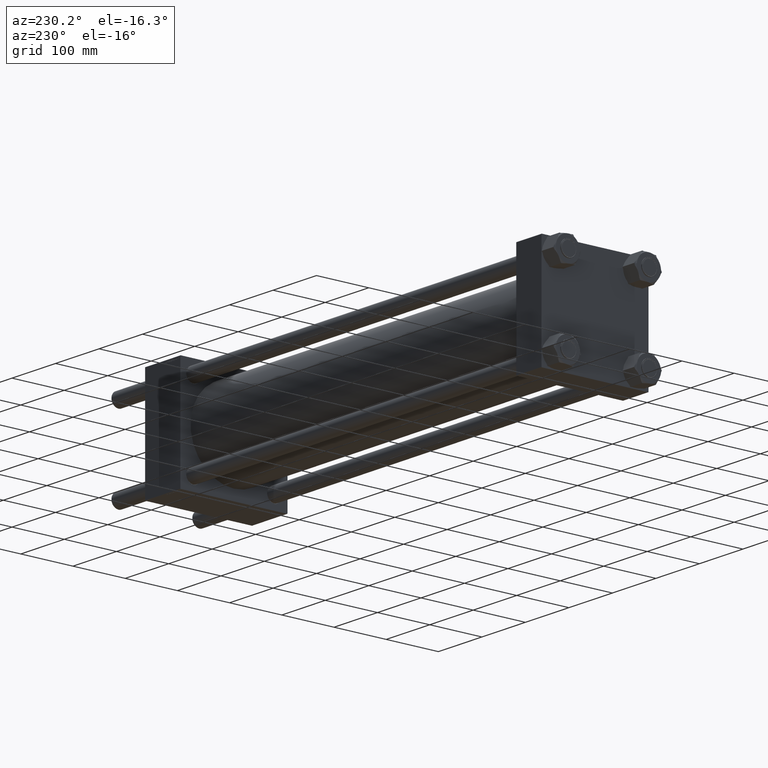
[diagram: clean part render]
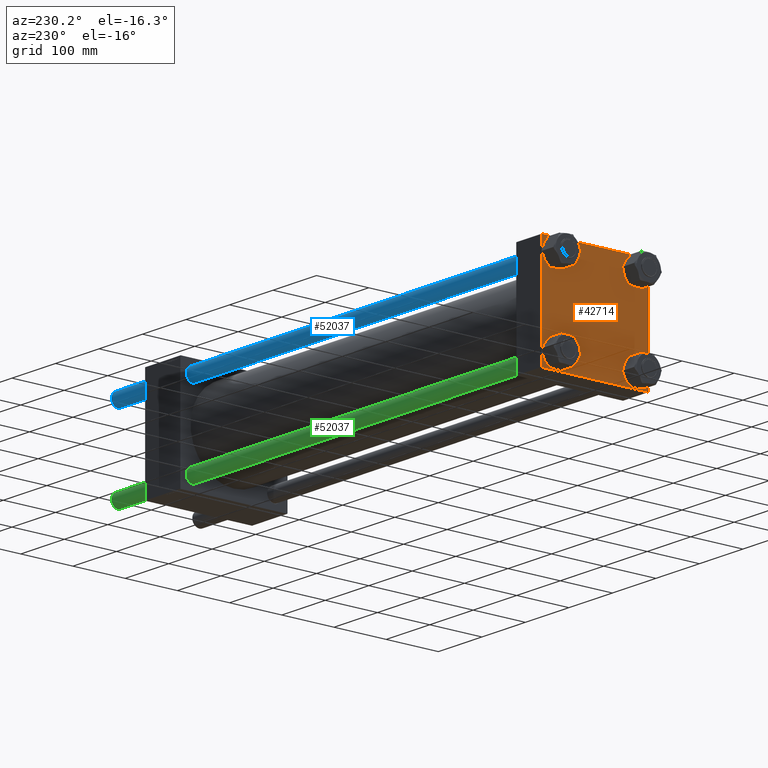
[diagram: same view with three faces highlighted in distinct colors, each labeled with its STEP entity id]
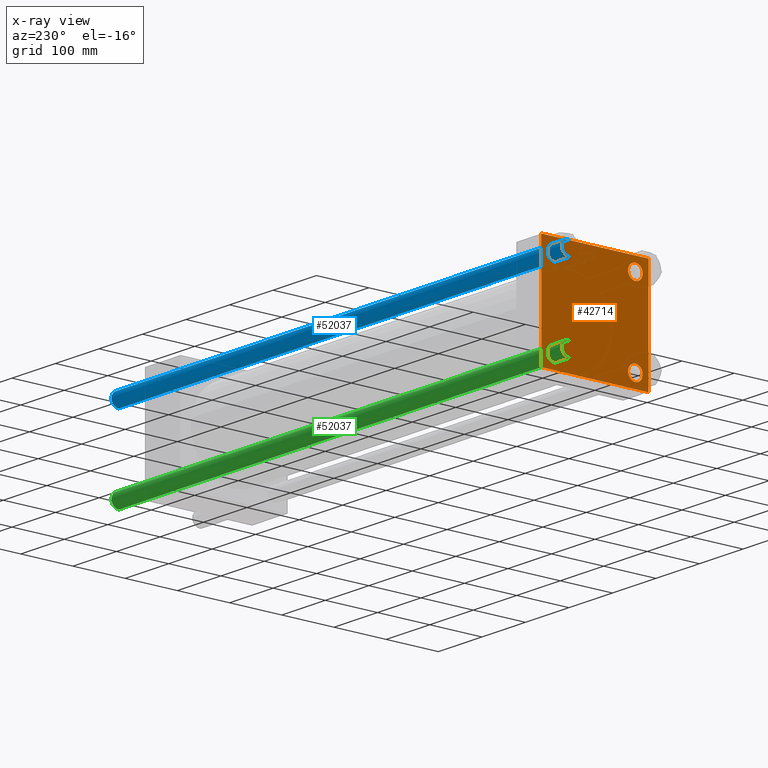
[diagram: x-ray of the same camera — body ghosted, the three highlighted faces saturated]
A machine part, auxiliary view with three faces highlighted in distinct colors.
The next image is the same camera in x-ray (body ghosted, the three faces saturated) — at least one of them is partly hidden behind the body in this view.
Their STEP definitions:

[orange] entity #42714 — the highlighted planar face has unit normal (-1, 0, 0).
#962 = LINE ( 'NONE', #22947, #21570 ) ;
#1327 = CARTESIAN_POINT ( 'NONE',  ( 0.000000000000000000, -102.2499999999999716, -102.2499999999999716 ) ) ;
#1671 = CARTESIAN_POINT ( 'NONE',  ( 0.000000000000000000, 77.44999999999998863, -63.44999999999989626 ) ) ;
#2282 = VERTEX_POINT ( 'NONE', #13772 ) ;
#2371 = CIRCLE ( 'NONE', #20866, 14.00000000000012434 ) ;
#2574 = DIRECTION ( 'NONE',  ( 1.000000000000000000, -0.000000000000000000, -0.000000000000000000 ) ) ;
#3871 = DIRECTION ( 'NONE',  ( 1.000000000000000000, -0.000000000000000000, -0.000000000000000000 ) ) ;
#4289 = PLANE ( 'NONE',  #53855 ) ;
#4861 = CARTESIAN_POINT ( 'NONE',  ( 0.000000000000000000, -77.44999999999996021, -63.44999999999991047 ) ) ;
#5528 = DIRECTION ( 'NONE',  ( 1.000000000000000000, -0.000000000000000000, -0.000000000000000000 ) ) ;
#5550 = DIRECTION ( 'NONE',  ( 0.000000000000000000, 0.000000000000000000, 1.000000000000000000 ) ) ;
#5654 = DIRECTION ( 'NONE',  ( 0.000000000000000000, 0.000000000000000000, 1.000000000000000000 ) ) ;
#5940 = CARTESIAN_POINT ( 'NONE',  ( 0.000000000000000000, -77.44999999999996021, 77.45000000000003126 ) ) ;
#6613 = CIRCLE ( 'NONE', #41757, 14.00000000000012434 ) ;
#6953 = ORIENTED_EDGE ( 'NONE', *, *, #9409, .T. ) ;
#7185 = AXIS2_PLACEMENT_3D ( 'NONE', #38624, #43532, #56568 ) ;
#7325 = CARTESIAN_POINT ( 'NONE',  ( 0.000000000000000000, -77.44999999999996021, -91.45000000000015916 ) ) ;
#7538 = CIRCLE ( 'NONE', #39930, 14.00000000000012434 ) ;
#9409 = EDGE_CURVE ( 'NONE', #57091, #15075, #6613, .T. ) ;
#10586 = DIRECTION ( 'NONE',  ( 0.000000000000000000, 0.7071067811865474617, -0.7071067811865474617 ) ) ;
#10703 = DIRECTION ( 'NONE',  ( 1.000000000000000000, -0.000000000000000000, -0.000000000000000000 ) ) ;
#11068 = ORIENTED_EDGE ( 'NONE', *, *, #21853, .T. ) ;
#11828 = EDGE_CURVE ( 'NONE', #15075, #57091, #40883, .T. ) ;
#12135 = VERTEX_POINT ( 'NONE', #38922 ) ;
#12241 = DIRECTION ( 'NONE',  ( 0.000000000000000000, 0.000000000000000000, 1.000000000000000000 ) ) ;
#12375 = DIRECTION ( 'NONE',  ( 0.000000000000000000, 0.000000000000000000, 1.000000000000000000 ) ) ;
#12846 = EDGE_LOOP ( 'NONE', ( #44257, #39373 ) ) ;
#13221 = VERTEX_POINT ( 'NONE', #53761 ) ;
#13230 = LINE ( 'NONE', #48839, #27051 ) ;
#13523 = ORIENTED_EDGE ( 'NONE', *, *, #57269, .T. ) ;
#13772 = CARTESIAN_POINT ( 'NONE',  ( 0.000000000000000000, 102.5000000000000284, -101.9999999999999147 ) ) ;
#14075 = CARTESIAN_POINT ( 'NONE',  ( 0.000000000000000000, 102.2500000000000142, 102.2500000000000142 ) ) ;
#14211 = DIRECTION ( 'NONE',  ( 0.000000000000000000, 0.000000000000000000, 1.000000000000000000 ) ) ;
#14477 = DIRECTION ( 'NONE',  ( 0.000000000000000000, 0.000000000000000000, 1.000000000000000000 ) ) ;
#15075 = VERTEX_POINT ( 'NONE', #47080 ) ;
#15429 = EDGE_CURVE ( 'NONE', #12135, #13221, #962, .T. ) ;
#16279 = EDGE_LOOP ( 'NONE', ( #16404, #33040, #28619, #21400, #51995, #17416, #43412, #13523 ) ) ;
#16404 = ORIENTED_EDGE ( 'NONE', *, *, #55862, .T. ) ;
#17002 = CARTESIAN_POINT ( 'NONE',  ( 0.000000000000000000, -101.9999999999999147, 102.5000000000000000 ) ) ;
#17416 = ORIENTED_EDGE ( 'NONE', *, *, #47069, .T. ) ;
#17829 = ORIENTED_EDGE ( 'NONE', *, *, #50490, .T. ) ;
#19379 = EDGE_LOOP ( 'NONE', ( #6953, #47185 ) ) ;
#20074 = LINE ( 'NONE', #46979, #21438 ) ;
#20494 = VECTOR ( 'NONE', #24979, 1000.000000000000114 ) ;
#20866 = AXIS2_PLACEMENT_3D ( 'NONE', #48672, #5528, #14211 ) ;
#21063 = CARTESIAN_POINT ( 'NONE',  ( 0.000000000000000000, 77.44999999999998863, 63.44999999999989626 ) ) ;
#21112 = EDGE_CURVE ( 'NONE', #44792, #54692, #30734, .T. ) ;
#21230 = CARTESIAN_POINT ( 'NONE',  ( 0.000000000000000000, -77.44999999999996021, -77.45000000000003126 ) ) ;
#21400 = ORIENTED_EDGE ( 'NONE', *, *, #28367, .T. ) ;
#21438 = VECTOR ( 'NONE', #33963, 1000.000000000000000 ) ;
#21570 = VECTOR ( 'NONE', #41188, 1000.000000000000000 ) ;
#21648 = CARTESIAN_POINT ( 'NONE',  ( 0.000000000000000000, 0.000000000000000000, 0.000000000000000000 ) ) ;
#21777 = VERTEX_POINT ( 'NONE', #37790 ) ;
#21853 = EDGE_CURVE ( 'NONE', #33631, #23540, #2371, .T. ) ;
#22193 = CARTESIAN_POINT ( 'NONE',  ( 0.000000000000000000, -102.5000000000000000, -101.9999999999998863 ) ) ;
#22947 = CARTESIAN_POINT ( 'NONE',  ( 0.000000000000000000, 102.5000000000000284, -102.4999999999999716 ) ) ;
#23174 = ORIENTED_EDGE ( 'NONE', *, *, #53692, .T. ) ;
#23470 = CIRCLE ( 'NONE', #33660, 14.00000000000012434 ) ;
#23540 = VERTEX_POINT ( 'NONE', #47126 ) ;
#24185 = VERTEX_POINT ( 'NONE', #7325 ) ;
#24395 = CARTESIAN_POINT ( 'NONE',  ( 0.000000000000000000, 77.44999999999998863, 91.45000000000014495 ) ) ;
#24979 = DIRECTION ( 'NONE',  ( -0.000000000000000000, -0.7071067811865474617, -0.7071067811865474617 ) ) ;
#25251 = CIRCLE ( 'NONE', #30835, 14.00000000000012434 ) ;
#25999 = FACE_BOUND ( 'NONE', #43546, .T. ) ;
#27051 = VECTOR ( 'NONE', #34958, 1000.000000000000114 ) ;
#27211 = AXIS2_PLACEMENT_3D ( 'NONE', #21230, #3871, #12241 ) ;
#27928 = CARTESIAN_POINT ( 'NONE',  ( 0.000000000000000000, 102.5000000000000284, 102.5000000000000284 ) ) ;
#28367 = EDGE_CURVE ( 'NONE', #13221, #54692, #41263, .T. ) ;
#28540 = EDGE_CURVE ( 'NONE', #36273, #54029, #32178, .T. ) ;
#28619 = ORIENTED_EDGE ( 'NONE', *, *, #15429, .T. ) ;
#29471 = CARTESIAN_POINT ( 'NONE',  ( 0.000000000000000000, -77.44999999999996021, 91.45000000000015916 ) ) ;
#30068 = FACE_BOUND ( 'NONE', #19379, .T. ) ;
#30340 = FACE_BOUND ( 'NONE', #55679, .T. ) ;
#30734 = LINE ( 'NONE', #33936, #31012 ) ;
#30835 = AXIS2_PLACEMENT_3D ( 'NONE', #50378, #10703, #14477 ) ;
#31012 = VECTOR ( 'NONE', #47237, 1000.000000000000000 ) ;
#32178 = CIRCLE ( 'NONE', #7185, 14.00000000000012434 ) ;
#33040 = ORIENTED_EDGE ( 'NONE', *, *, #46642, .T. ) ;
#33116 = CARTESIAN_POINT ( 'NONE',  ( 0.000000000000000000, 102.2500000000000000, -102.2500000000000000 ) ) ;
#33631 = VERTEX_POINT ( 'NONE', #1671 ) ;
#33660 = AXIS2_PLACEMENT_3D ( 'NONE', #48061, #57040, #35322 ) ;
#33936 = CARTESIAN_POINT ( 'NONE',  ( 0.000000000000000000, -102.4999999999999716, 102.5000000000000000 ) ) ;
#33963 = DIRECTION ( 'NONE',  ( 0.000000000000000000, -1.000000000000000000, -1.353930517835556973E-16 ) ) ;
#34341 = VERTEX_POINT ( 'NONE', #53573 ) ;
#34649 = DIRECTION ( 'NONE',  ( 1.000000000000000000, -0.000000000000000000, -0.000000000000000000 ) ) ;
#34689 = FACE_BOUND ( 'NONE', #12846, .T. ) ;
#34958 = DIRECTION ( 'NONE',  ( -0.000000000000000000, 0.7071067811865474617, 0.7071067811865474617 ) ) ;
#35322 = DIRECTION ( 'NONE',  ( 0.000000000000000000, 0.000000000000000000, 1.000000000000000000 ) ) ;
#36273 = VERTEX_POINT ( 'NONE', #21063 ) ;
#37467 = LINE ( 'NONE', #33116, #20494 ) ;
#37790 = CARTESIAN_POINT ( 'NONE',  ( 0.000000000000000000, 102.5000000000000284, 102.0000000000000142 ) ) ;
#38074 = AXIS2_PLACEMENT_3D ( 'NONE', #46818, #34649, #38142 ) ;
#38142 = DIRECTION ( 'NONE',  ( 0.000000000000000000, 0.000000000000000000, 1.000000000000000000 ) ) ;
#38624 = CARTESIAN_POINT ( 'NONE',  ( 0.000000000000000000, 77.44999999999998863, 77.45000000000001705 ) ) ;
#38922 = CARTESIAN_POINT ( 'NONE',  ( 0.000000000000000000, 102.0000000000000142, -102.4999999999999716 ) ) ;
#39223 = CIRCLE ( 'NONE', #27211, 14.00000000000012434 ) ;
#39349 = VECTOR ( 'NONE', #10586, 1000.000000000000114 ) ;
#39373 = ORIENTED_EDGE ( 'NONE', *, *, #28540, .T. ) ;
#39930 = AXIS2_PLACEMENT_3D ( 'NONE', #42229, #2574, #5550 ) ;
#40512 = VECTOR ( 'NONE', #50521, 1000.000000000000114 ) ;
#40883 = CIRCLE ( 'NONE', #38074, 14.00000000000012434 ) ;
#40945 = DIRECTION ( 'NONE',  ( 0.000000000000000000, 0.000000000000000000, -1.000000000000000000 ) ) ;
#41188 = DIRECTION ( 'NONE',  ( 0.000000000000000000, -1.000000000000000000, -1.353930517835556727E-16 ) ) ;
#41263 = LINE ( 'NONE', #1327, #40512 ) ;
#41500 = CARTESIAN_POINT ( 'NONE',  ( 0.000000000000000000, -102.4999999999999716, 102.0000000000000000 ) ) ;
#41757 = AXIS2_PLACEMENT_3D ( 'NONE', #5940, #44750, #5654 ) ;
#42229 = CARTESIAN_POINT ( 'NONE',  ( 0.000000000000000000, -77.44999999999996021, -77.45000000000003126 ) ) ;
#42714 = ADVANCED_FACE ( 'NONE', ( #30068, #25999, #30340, #34689, #47423 ), #4289, .T. ) ;
#43412 = ORIENTED_EDGE ( 'NONE', *, *, #46651, .F. ) ;
#43532 = DIRECTION ( 'NONE',  ( 1.000000000000000000, -0.000000000000000000, -0.000000000000000000 ) ) ;
#43546 = EDGE_LOOP ( 'NONE', ( #51423, #23174 ) ) ;
#44218 = VERTEX_POINT ( 'NONE', #17002 ) ;
#44257 = ORIENTED_EDGE ( 'NONE', *, *, #51384, .T. ) ;
#44750 = DIRECTION ( 'NONE',  ( 1.000000000000000000, -0.000000000000000000, -0.000000000000000000 ) ) ;
#44792 = VERTEX_POINT ( 'NONE', #41500 ) ;
#45853 = LINE ( 'NONE', #27928, #50382 ) ;
#46642 = EDGE_CURVE ( 'NONE', #2282, #12135, #37467, .T. ) ;
#46651 = EDGE_CURVE ( 'NONE', #34341, #44218, #20074, .T. ) ;
#46818 = CARTESIAN_POINT ( 'NONE',  ( 0.000000000000000000, -77.44999999999996021, 77.45000000000003126 ) ) ;
#46885 = EDGE_CURVE ( 'NONE', #52454, #24185, #7538, .T. ) ;
#46979 = CARTESIAN_POINT ( 'NONE',  ( 0.000000000000000000, 102.5000000000000284, 102.5000000000000284 ) ) ;
#47069 = EDGE_CURVE ( 'NONE', #44792, #44218, #13230, .T. ) ;
#47080 = CARTESIAN_POINT ( 'NONE',  ( 0.000000000000000000, -77.44999999999996021, 63.44999999999991047 ) ) ;
#47126 = CARTESIAN_POINT ( 'NONE',  ( 0.000000000000000000, 77.44999999999998863, -91.45000000000014495 ) ) ;
#47185 = ORIENTED_EDGE ( 'NONE', *, *, #11828, .T. ) ;
#47237 = DIRECTION ( 'NONE',  ( 0.000000000000000000, -1.353930517835556973E-16, -1.000000000000000000 ) ) ;
#47423 = FACE_OUTER_BOUND ( 'NONE', #16279, .T. ) ;
#48061 = CARTESIAN_POINT ( 'NONE',  ( 0.000000000000000000, 77.44999999999998863, 77.45000000000001705 ) ) ;
#48562 = DIRECTION ( 'NONE',  ( -1.000000000000000000, 0.000000000000000000, 0.000000000000000000 ) ) ;
#48672 = CARTESIAN_POINT ( 'NONE',  ( 0.000000000000000000, 77.44999999999998863, -77.45000000000001705 ) ) ;
#48839 = CARTESIAN_POINT ( 'NONE',  ( 0.000000000000000000, -102.2499999999999716, 102.2499999999999716 ) ) ;
#49964 = LINE ( 'NONE', #14075, #39349 ) ;
#50378 = CARTESIAN_POINT ( 'NONE',  ( 0.000000000000000000, 77.44999999999998863, -77.45000000000001705 ) ) ;
#50382 = VECTOR ( 'NONE', #40945, 1000.000000000000000 ) ;
#50490 = EDGE_CURVE ( 'NONE', #23540, #33631, #25251, .T. ) ;
#50521 = DIRECTION ( 'NONE',  ( 0.000000000000000000, -0.7071067811865474617, 0.7071067811865474617 ) ) ;
#51384 = EDGE_CURVE ( 'NONE', #54029, #36273, #23470, .T. ) ;
#51423 = ORIENTED_EDGE ( 'NONE', *, *, #46885, .T. ) ;
#51995 = ORIENTED_EDGE ( 'NONE', *, *, #21112, .F. ) ;
#52454 = VERTEX_POINT ( 'NONE', #4861 ) ;
#53573 = CARTESIAN_POINT ( 'NONE',  ( 0.000000000000000000, 102.0000000000000142, 102.5000000000000284 ) ) ;
#53692 = EDGE_CURVE ( 'NONE', #24185, #52454, #39223, .T. ) ;
#53761 = CARTESIAN_POINT ( 'NONE',  ( 0.000000000000000000, -101.9999999999999432, -102.5000000000000000 ) ) ;
#53855 = AXIS2_PLACEMENT_3D ( 'NONE', #21648, #48562, #12375 ) ;
#54029 = VERTEX_POINT ( 'NONE', #24395 ) ;
#54692 = VERTEX_POINT ( 'NONE', #22193 ) ;
#55679 = EDGE_LOOP ( 'NONE', ( #11068, #17829 ) ) ;
#55862 = EDGE_CURVE ( 'NONE', #21777, #2282, #45853, .T. ) ;
#56568 = DIRECTION ( 'NONE',  ( 0.000000000000000000, 0.000000000000000000, 1.000000000000000000 ) ) ;
#57040 = DIRECTION ( 'NONE',  ( 1.000000000000000000, -0.000000000000000000, -0.000000000000000000 ) ) ;
#57091 = VERTEX_POINT ( 'NONE', #29471 ) ;
#57269 = EDGE_CURVE ( 'NONE', #34341, #21777, #49964, .T. ) ;

[blue] entity #52037 — the highlighted cylindrical surface (edge-blend (fillet) strip) has radius 13.5 mm, axis along (1, -0, -0).
#156 = EDGE_CURVE ( 'NONE', #10868, #55394, #33296, .T. ) ;
#2156 = CARTESIAN_POINT ( 'NONE',  ( 0.000000000000000000, 0.000000000000000000, 0.4999999999999449329 ) ) ;
#2216 = AXIS2_PLACEMENT_3D ( 'NONE', #2156, #37181, #37746 ) ;
#2420 = DIRECTION ( 'NONE',  ( 0.000000000000000000, 0.000000000000000000, -1.000000000000000000 ) ) ;
#5145 = DIRECTION ( 'NONE',  ( -0.000000000000000000, -0.000000000000000000, -1.000000000000000000 ) ) ;
#5605 = CARTESIAN_POINT ( 'NONE',  ( 0.000000000000000000, 0.000000000000000000, 1035.500000000000227 ) ) ;
#6821 = CIRCLE ( 'NONE', #2216, 13.50000000000000000 ) ;
#8166 = DIRECTION ( 'NONE',  ( -1.000000000000000000, 0.000000000000000000, 0.000000000000000000 ) ) ;
#8535 = ORIENTED_EDGE ( 'NONE', *, *, #156, .T. ) ;
#9617 = VECTOR ( 'NONE', #35121, 1000.000000000000000 ) ;
#9757 = CARTESIAN_POINT ( 'NONE',  ( 13.50000000000000000, 1.653273178848926867E-15, 1036.000000000000000 ) ) ;
#10868 = VERTEX_POINT ( 'NONE', #44962 ) ;
#12223 = CYLINDRICAL_SURFACE ( 'NONE', #54893, 13.50000000000000000 ) ;
#15715 = CARTESIAN_POINT ( 'NONE',  ( 13.50000000000000000, 1.653273178848926867E-15, 0.4999999999999449329 ) ) ;
#16073 = EDGE_CURVE ( 'NONE', #44913, #49247, #6821, .T. ) ;
#16552 = EDGE_CURVE ( 'NONE', #55394, #44913, #35541, .T. ) ;
#16613 = AXIS2_PLACEMENT_3D ( 'NONE', #5605, #2420, #45259 ) ;
#16630 = ORIENTED_EDGE ( 'NONE', *, *, #53744, .F. ) ;
#17351 = EDGE_LOOP ( 'NONE', ( #8535, #27348, #54054, #16630 ) ) ;
#20643 = FACE_OUTER_BOUND ( 'NONE', #17351, .T. ) ;
#21215 = CARTESIAN_POINT ( 'NONE',  ( 0.000000000000000000, 0.000000000000000000, 1036.000000000000000 ) ) ;
#25858 = DIRECTION ( 'NONE',  ( -0.000000000000000000, -0.000000000000000000, -1.000000000000000000 ) ) ;
#27348 = ORIENTED_EDGE ( 'NONE', *, *, #16552, .T. ) ;
#29203 = CARTESIAN_POINT ( 'NONE',  ( 13.50000000000000000, 1.653273178848926867E-15, 1035.500000000000227 ) ) ;
#33296 = CIRCLE ( 'NONE', #16613, 13.50000000000000000 ) ;
#35121 = DIRECTION ( 'NONE',  ( -0.000000000000000000, -0.000000000000000000, -1.000000000000000000 ) ) ;
#35404 = CARTESIAN_POINT ( 'NONE',  ( -13.50000000000000000, 0.000000000000000000, 0.4999999999999449329 ) ) ;
#35541 = LINE ( 'NONE', #9757, #54899 ) ;
#37181 = DIRECTION ( 'NONE',  ( -0.000000000000000000, -0.000000000000000000, 1.000000000000000000 ) ) ;
#37746 = DIRECTION ( 'NONE',  ( 1.000000000000000000, 0.000000000000000000, 0.000000000000000000 ) ) ;
#38335 = CARTESIAN_POINT ( 'NONE',  ( -13.50000000000000000, 0.000000000000000000, 1036.000000000000000 ) ) ;
#44913 = VERTEX_POINT ( 'NONE', #15715 ) ;
#44962 = CARTESIAN_POINT ( 'NONE',  ( -13.50000000000000000, 0.000000000000000000, 1035.500000000000227 ) ) ;
#45259 = DIRECTION ( 'NONE',  ( 1.000000000000000000, 0.000000000000000000, 0.000000000000000000 ) ) ;
#48440 = LINE ( 'NONE', #38335, #9617 ) ;
#49247 = VERTEX_POINT ( 'NONE', #35404 ) ;
#52037 = ADVANCED_FACE ( 'NONE', ( #20643 ), #12223, .T. ) ;
#53744 = EDGE_CURVE ( 'NONE', #10868, #49247, #48440, .T. ) ;
#54054 = ORIENTED_EDGE ( 'NONE', *, *, #16073, .T. ) ;
#54893 = AXIS2_PLACEMENT_3D ( 'NONE', #21215, #25858, #8166 ) ;
#54899 = VECTOR ( 'NONE', #5145, 1000.000000000000000 ) ;
#55394 = VERTEX_POINT ( 'NONE', #29203 ) ;

[green] entity #52037 — the highlighted cylindrical surface (edge-blend (fillet) strip) has radius 13.5 mm, axis along (-1, -0, 0).
#156 = EDGE_CURVE ( 'NONE', #10868, #55394, #33296, .T. ) ;
#2156 = CARTESIAN_POINT ( 'NONE',  ( 0.000000000000000000, 0.000000000000000000, 0.4999999999999449329 ) ) ;
#2216 = AXIS2_PLACEMENT_3D ( 'NONE', #2156, #37181, #37746 ) ;
#2420 = DIRECTION ( 'NONE',  ( 0.000000000000000000, 0.000000000000000000, -1.000000000000000000 ) ) ;
#5145 = DIRECTION ( 'NONE',  ( -0.000000000000000000, -0.000000000000000000, -1.000000000000000000 ) ) ;
#5605 = CARTESIAN_POINT ( 'NONE',  ( 0.000000000000000000, 0.000000000000000000, 1035.500000000000227 ) ) ;
#6821 = CIRCLE ( 'NONE', #2216, 13.50000000000000000 ) ;
#8166 = DIRECTION ( 'NONE',  ( -1.000000000000000000, 0.000000000000000000, 0.000000000000000000 ) ) ;
#8535 = ORIENTED_EDGE ( 'NONE', *, *, #156, .T. ) ;
#9617 = VECTOR ( 'NONE', #35121, 1000.000000000000000 ) ;
#9757 = CARTESIAN_POINT ( 'NONE',  ( 13.50000000000000000, 1.653273178848926867E-15, 1036.000000000000000 ) ) ;
#10868 = VERTEX_POINT ( 'NONE', #44962 ) ;
#12223 = CYLINDRICAL_SURFACE ( 'NONE', #54893, 13.50000000000000000 ) ;
#15715 = CARTESIAN_POINT ( 'NONE',  ( 13.50000000000000000, 1.653273178848926867E-15, 0.4999999999999449329 ) ) ;
#16073 = EDGE_CURVE ( 'NONE', #44913, #49247, #6821, .T. ) ;
#16552 = EDGE_CURVE ( 'NONE', #55394, #44913, #35541, .T. ) ;
#16613 = AXIS2_PLACEMENT_3D ( 'NONE', #5605, #2420, #45259 ) ;
#16630 = ORIENTED_EDGE ( 'NONE', *, *, #53744, .F. ) ;
#17351 = EDGE_LOOP ( 'NONE', ( #8535, #27348, #54054, #16630 ) ) ;
#20643 = FACE_OUTER_BOUND ( 'NONE', #17351, .T. ) ;
#21215 = CARTESIAN_POINT ( 'NONE',  ( 0.000000000000000000, 0.000000000000000000, 1036.000000000000000 ) ) ;
#25858 = DIRECTION ( 'NONE',  ( -0.000000000000000000, -0.000000000000000000, -1.000000000000000000 ) ) ;
#27348 = ORIENTED_EDGE ( 'NONE', *, *, #16552, .T. ) ;
#29203 = CARTESIAN_POINT ( 'NONE',  ( 13.50000000000000000, 1.653273178848926867E-15, 1035.500000000000227 ) ) ;
#33296 = CIRCLE ( 'NONE', #16613, 13.50000000000000000 ) ;
#35121 = DIRECTION ( 'NONE',  ( -0.000000000000000000, -0.000000000000000000, -1.000000000000000000 ) ) ;
#35404 = CARTESIAN_POINT ( 'NONE',  ( -13.50000000000000000, 0.000000000000000000, 0.4999999999999449329 ) ) ;
#35541 = LINE ( 'NONE', #9757, #54899 ) ;
#37181 = DIRECTION ( 'NONE',  ( -0.000000000000000000, -0.000000000000000000, 1.000000000000000000 ) ) ;
#37746 = DIRECTION ( 'NONE',  ( 1.000000000000000000, 0.000000000000000000, 0.000000000000000000 ) ) ;
#38335 = CARTESIAN_POINT ( 'NONE',  ( -13.50000000000000000, 0.000000000000000000, 1036.000000000000000 ) ) ;
#44913 = VERTEX_POINT ( 'NONE', #15715 ) ;
#44962 = CARTESIAN_POINT ( 'NONE',  ( -13.50000000000000000, 0.000000000000000000, 1035.500000000000227 ) ) ;
#45259 = DIRECTION ( 'NONE',  ( 1.000000000000000000, 0.000000000000000000, 0.000000000000000000 ) ) ;
#48440 = LINE ( 'NONE', #38335, #9617 ) ;
#49247 = VERTEX_POINT ( 'NONE', #35404 ) ;
#52037 = ADVANCED_FACE ( 'NONE', ( #20643 ), #12223, .T. ) ;
#53744 = EDGE_CURVE ( 'NONE', #10868, #49247, #48440, .T. ) ;
#54054 = ORIENTED_EDGE ( 'NONE', *, *, #16073, .T. ) ;
#54893 = AXIS2_PLACEMENT_3D ( 'NONE', #21215, #25858, #8166 ) ;
#54899 = VECTOR ( 'NONE', #5145, 1000.000000000000000 ) ;
#55394 = VERTEX_POINT ( 'NONE', #29203 ) ;